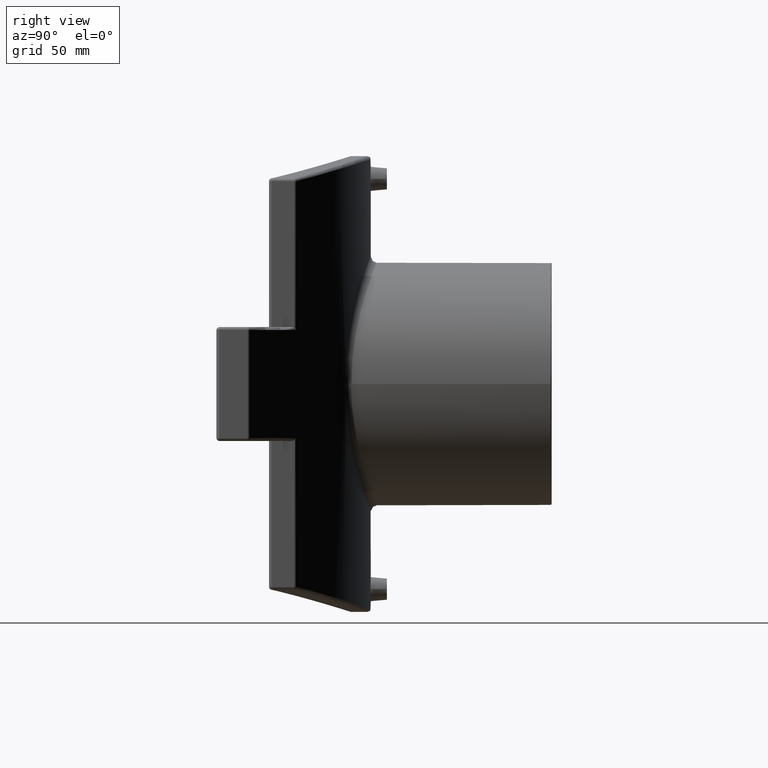
[diagram: clean part render]
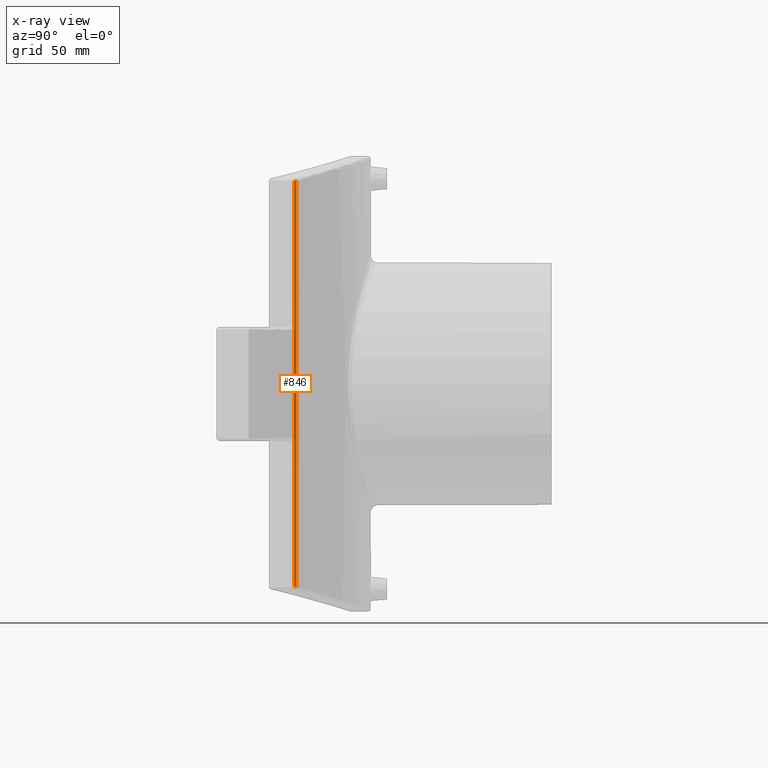
[diagram: x-ray — body ghosted, one internal face saturated and labeled with its STEP entity id]
A machine part, right view, then the same camera in x-ray: the body is ghosted and one INTERNAL B-rep face — a face not visible from any outside direction — is saturated and labeled: STEP entity #846.
In plain terms, the highlighted cylindrical surface (edge-blend (fillet) strip) has radius 2 mm, axis along (0, 0, -1).
Its self-contained STEP definition (entity closure, byte-faithful):
#31=LINE('',#1567,#61);
#34=LINE('',#1873,#64);
#61=VECTOR('',#1036,266.784009754194);
#64=VECTOR('',#1147,266.784009754194);
#125=CYLINDRICAL_SURFACE('',#949,2.);
#209=FACE_OUTER_BOUND('',#296,.T.);
#296=EDGE_LOOP('',(#661,#662,#663,#664));
#359=CIRCLE('',#934,2.00000000000003);
#369=CIRCLE('',#947,1.99999999999996);
#408=VERTEX_POINT('',#1555);
#409=VERTEX_POINT('',#1566);
#434=VERTEX_POINT('',#1788);
#442=VERTEX_POINT('',#1869);
#480=EDGE_CURVE('',#409,#408,#31,.T.);
#508=EDGE_CURVE('',#408,#434,#359,.F.);
#519=EDGE_CURVE('',#442,#409,#369,.F.);
#521=EDGE_CURVE('',#434,#442,#34,.T.);
#661=ORIENTED_EDGE('',*,*,#508,.T.);
#662=ORIENTED_EDGE('',*,*,#521,.T.);
#663=ORIENTED_EDGE('',*,*,#519,.T.);
#664=ORIENTED_EDGE('',*,*,#480,.T.);
#846=ADVANCED_FACE('',(#209),#125,.T.);
#934=AXIS2_PLACEMENT_3D('',#1789,#1115,#1116);
#947=AXIS2_PLACEMENT_3D('',#1870,#1141,#1142);
#949=AXIS2_PLACEMENT_3D('',#1872,#1145,#1146);
#1036=DIRECTION('',(0.,0.,-1.));
#1115=DIRECTION('center_axis',(-5.32907051820087E-14,-4.38019030471019E-14,
-1.));
#1116=DIRECTION('ref_axis',(-0.634976525821599,0.772531430852838,0.));
#1141=DIRECTION('center_axis',(0.,-6.89819249466348E-14,1.));
#1142=DIRECTION('ref_axis',(-1.,0.,0.));
#1145=DIRECTION('center_axis',(0.,0.,-1.));
#1146=DIRECTION('ref_axis',(-0.904150575352793,0.427213924268877,0.));
#1147=DIRECTION('',(0.,0.,1.));
#1555=CARTESIAN_POINT('',(-136.519953051643,166.09425763336,-133.392004877097));
#1566=CARTESIAN_POINT('',(-136.519953051643,166.094257633361,133.392004877097));
#1567=CARTESIAN_POINT('',(-136.519953051643,166.094257633361,0.));
#1788=CARTESIAN_POINT('',(-137.25,164.549194771655,-133.392004877097));
#1789=CARTESIAN_POINT('Origin',(-135.25,164.549194771655,-133.392004877097));
#1869=CARTESIAN_POINT('',(-137.25,164.549194771655,133.392004877097));
#1870=CARTESIAN_POINT('Origin',(-135.25,164.549194771655,133.392004877097));
#1872=CARTESIAN_POINT('Origin',(-135.25,164.549194771655,0.));
#1873=CARTESIAN_POINT('',(-137.25,164.549194771655,0.));